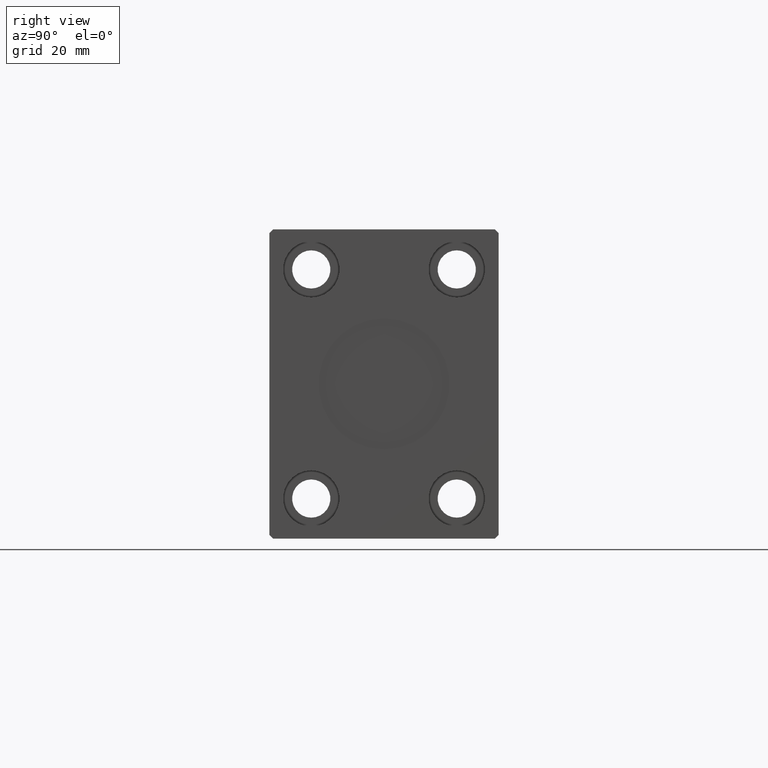
[diagram: clean part render]
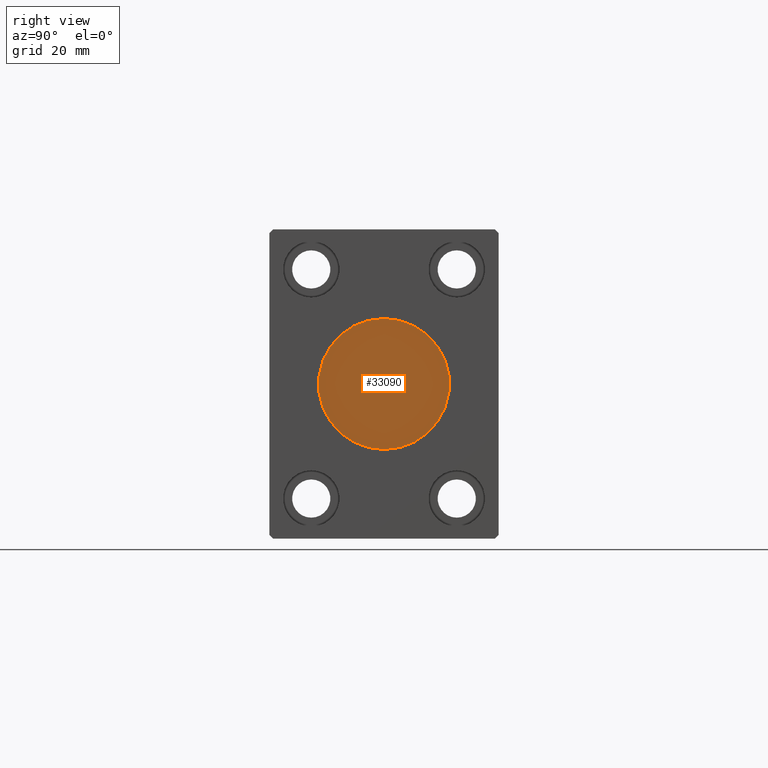
[diagram: same view with one face highlighted and labeled with its STEP entity id]
A machine part, right view. The second image highlights one B-rep face of the part: STEP entity #33090.
In plain terms, the highlighted planar face has unit normal (1, 0, 0).
Its self-contained STEP definition (entity closure, byte-faithful):
#785 = DIRECTION ( 'NONE',  ( 0.000000000000000000, 0.000000000000000000, -1.000000000000000000 ) ) ;
#3987 = DIRECTION ( 'NONE',  ( 1.000000000000000000, 0.000000000000000000, 0.000000000000000000 ) ) ;
#6780 = PLANE ( 'NONE',  #42145 ) ;
#9148 = CARTESIAN_POINT ( 'NONE',  ( 170.8000000000000114, 0.000000000000000000, -18.00000000000000000 ) ) ;
#10744 = CARTESIAN_POINT ( 'NONE',  ( 170.8000000000000114, 0.000000000000000000, 0.000000000000000000 ) ) ;
#19662 = CARTESIAN_POINT ( 'NONE',  ( 170.8000000000000114, 0.000000000000000000, 0.000000000000000000 ) ) ;
#22715 = CIRCLE ( 'NONE', #33690, 18.00000000000000000 ) ;
#23571 = ORIENTED_EDGE ( 'NONE', *, *, #39191, .T. ) ;
#24986 = AXIS2_PLACEMENT_3D ( 'NONE', #10744, #39969, #30063 ) ;
#25514 = EDGE_LOOP ( 'NONE', ( #29538, #23571 ) ) ;
#26541 = FACE_OUTER_BOUND ( 'NONE', #25514, .T. ) ;
#26984 = DIRECTION ( 'NONE',  ( 1.000000000000000000, 0.000000000000000000, 0.000000000000000000 ) ) ;
#29538 = ORIENTED_EDGE ( 'NONE', *, *, #33431, .T. ) ;
#30063 = DIRECTION ( 'NONE',  ( 0.000000000000000000, 0.000000000000000000, -1.000000000000000000 ) ) ;
#30884 = VERTEX_POINT ( 'NONE', #41651 ) ;
#33090 = ADVANCED_FACE ( 'NONE', ( #26541 ), #6780, .T. ) ;
#33431 = EDGE_CURVE ( 'NONE', #40766, #30884, #33872, .T. ) ;
#33690 = AXIS2_PLACEMENT_3D ( 'NONE', #40719, #26984, #785 ) ;
#33872 = CIRCLE ( 'NONE', #24986, 18.00000000000000000 ) ;
#39191 = EDGE_CURVE ( 'NONE', #30884, #40766, #22715, .T. ) ;
#39649 = DIRECTION ( 'NONE',  ( 0.000000000000000000, 0.000000000000000000, -1.000000000000000000 ) ) ;
#39969 = DIRECTION ( 'NONE',  ( 1.000000000000000000, 0.000000000000000000, 0.000000000000000000 ) ) ;
#40719 = CARTESIAN_POINT ( 'NONE',  ( 170.8000000000000114, 0.000000000000000000, 0.000000000000000000 ) ) ;
#40766 = VERTEX_POINT ( 'NONE', #9148 ) ;
#41651 = CARTESIAN_POINT ( 'NONE',  ( 170.8000000000000114, 2.204364238465235428E-15, 18.00000000000000000 ) ) ;
#42145 = AXIS2_PLACEMENT_3D ( 'NONE', #19662, #3987, #39649 ) ;